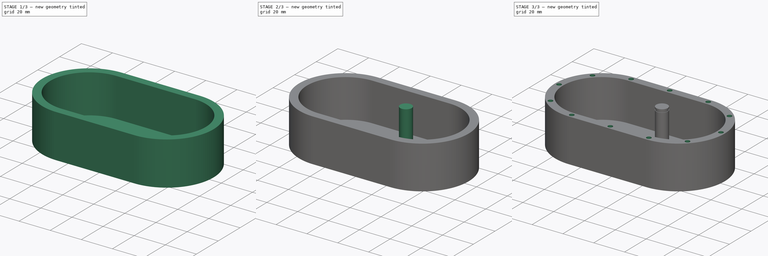
[diagram: build sequence overview — one tinted view per stage of 3, left to right]
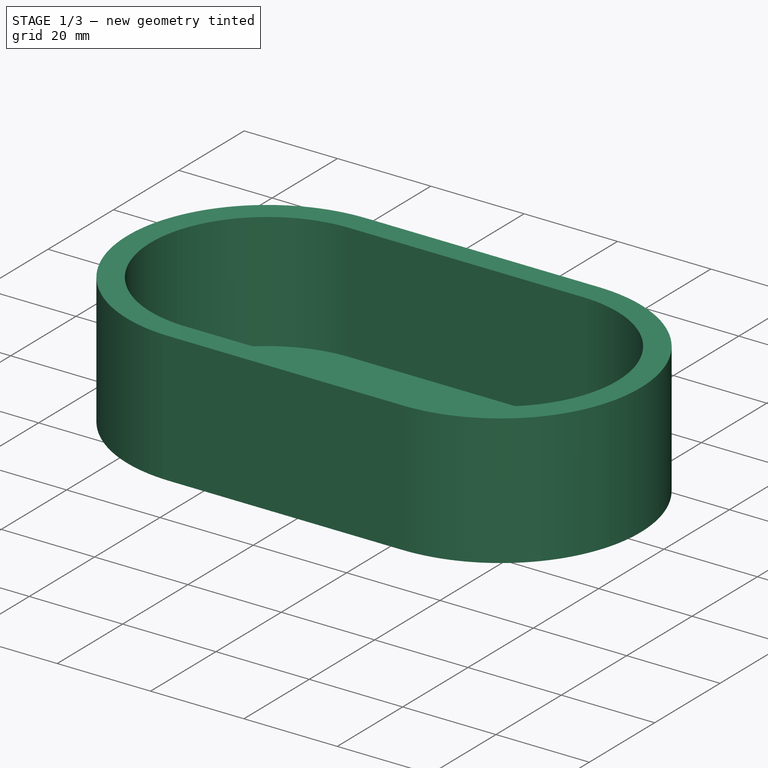
[diagram: stage 1 of 3 — iso view after this stage's code; geometry added in this stage tinted green]
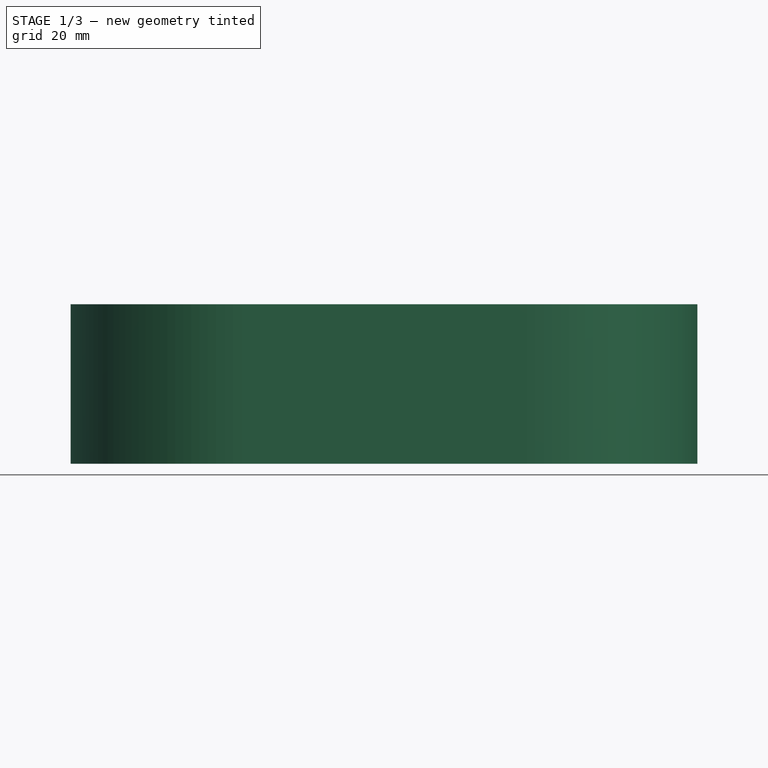
[diagram: stage 1 of 3 — front view after this stage's code; geometry added in this stage tinted green]
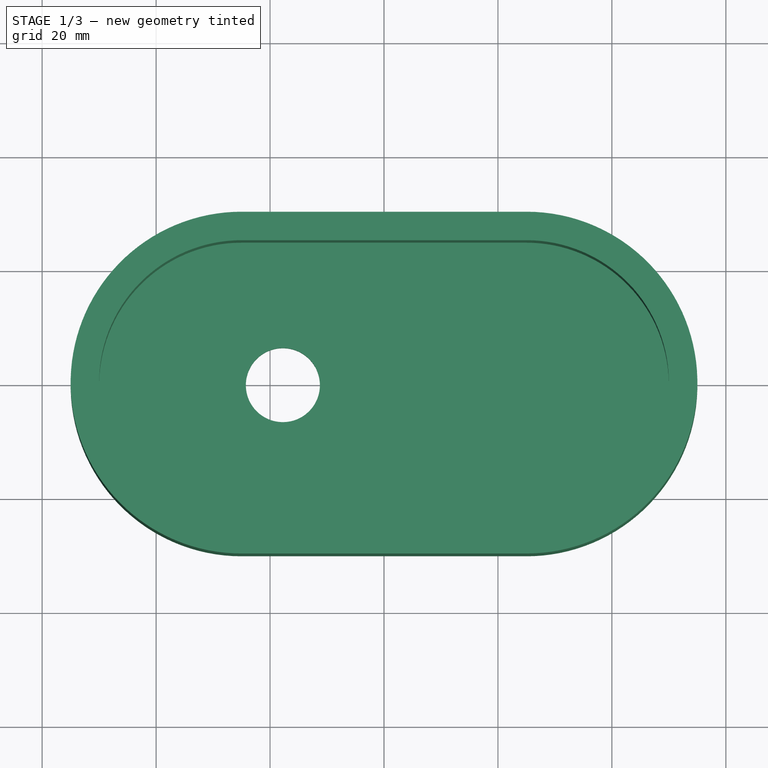
[diagram: stage 1 of 3 — top view after this stage's code; geometry added in this stage tinted green]
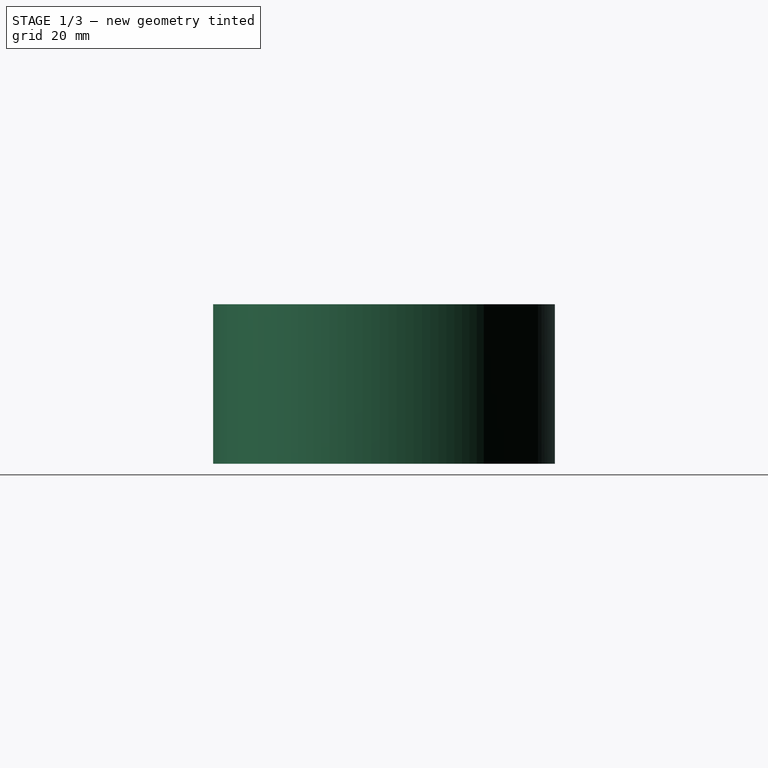
[diagram: stage 1 of 3 — right view after this stage's code; geometry added in this stage tinted green]
FCSTD DOCUMENT  (FreeCAD 0.17R13522 (Git))
Label: Gearbox
License: All rights reserved
LicenseURL: http://en.wikipedia.org/wiki/All_rights_reserved
objects: Sketcher::SketchObject×7, PartDesign::Pad×5, PartDesign::Plane×1, PartDesign::Groove×1, PartDesign::Pocket×1, PartDesign::Body×1, App::Part×1
note: 23 computed .brp shape members not serialized (recipe doc carries the construction recipe); baked Part::Feature solids carry a one-line shape summary decoded from their .brp

FEATURE [Sketcher::SketchObject] Sketch
  MapMode = 5
  Support = -> [XY_Plane001]
  sketch-geometry (7):
    g0: ArcOfCircle CenterX=-25 CenterY=0 CenterZ=0 NormalX=0 NormalY=0 NormalZ=1 AngleXU=0 Radius=30 StartAngle=1.5708 EndAngle=4.71239
    g1: ArcOfCircle CenterX=25 CenterY=0 CenterZ=0 NormalX=0 NormalY=0 NormalZ=1 AngleXU=0 Radius=30 StartAngle=4.71239 EndAngle=7.85398
    g2: LineSegment StartX=-25 StartY=-30 StartZ=0 EndX=25 EndY=-30 EndZ=0
    g3: LineSegment StartX=-25 StartY=30 StartZ=0 EndX=25 EndY=30 EndZ=0
    g4: Circle CenterX=-17.75 CenterY=0 CenterZ=0 NormalX=0 NormalY=0 NormalZ=1 AngleXU=0 Radius=6.5
    g5: Circle [constr] CenterX=-17.75 CenterY=0 CenterZ=0 NormalX=0 NormalY=0 NormalZ=1 AngleXU=0 Radius=15.5
    g6: Circle [constr] CenterX=17.75 CenterY=0 CenterZ=0 NormalX=0 NormalY=0 NormalZ=1 AngleXU=0 Radius=20
  constraints (18):
    c: Tangent(g0,g3) = 1.5708
    c: Tangent(g0,g2) = -1.5708
    c: Tangent(g2,g1) = -1.5708
    c: Tangent(g3,g1) = 1.5708
    c: Horizontal(g2)
    c: Equal(g0,g1)
    c: PointOnObject(g0,g-1)
    c: DistanceX(g0,g1) = 50
    c: DistanceY(g1,g1) = 60
    c: Symmetric(g0,g1,g-1)
    c: PointOnObject(g4,g-1)
    c: Radius(g4) = 6.5
    c: Coincident(g5,g4)
    c: PointOnObject(g6,g-1)
    c: Tangent(g6,g5)
    c: Radius(g6) = 20
    c: Radius(g5) = 15.5
    c: Symmetric(g4,g6,g-1)
FEATURE [PartDesign::Pad] Pad
  Length = 3
  Length2 = 100
  Profile = -> Sketch
  Type = 0
FEATURE [Sketcher::SketchObject] Sketch001  label="_gbwall"
  ExternalGeometry = -> [Pad]
  MapMode = 5
  Placement = pos=(0,0,3) rot=(0,0,1;0rad)
  Support = -> [Pad]
  sketch-geometry (12):
    g0: ArcOfCircle CenterX=-25 CenterY=0 CenterZ=0 NormalX=0 NormalY=0 NormalZ=1 AngleXU=0 Radius=25 StartAngle=1.5708 EndAngle=4.71239
    g1: ArcOfCircle CenterX=25 CenterY=0 CenterZ=0 NormalX=0 NormalY=0 NormalZ=1 AngleXU=0 Radius=25 StartAngle=4.71239 EndAngle=7.85398
    g2: LineSegment StartX=-25 StartY=-25 StartZ=0 EndX=25 EndY=-25 EndZ=0
    g3: LineSegment StartX=-25 StartY=25 StartZ=0 EndX=25 EndY=25 EndZ=0
    g4: LineSegment [constr] StartX=-25 StartY=25 StartZ=0 EndX=-25 EndY=30 EndZ=0
    g5: LineSegment [constr] StartX=25 StartY=-25 StartZ=0 EndX=25 EndY=-30 EndZ=0
    g6: LineSegment [constr] StartX=50 StartY=0 StartZ=0 EndX=55 EndY=0 EndZ=0
    g7: LineSegment [constr] StartX=-50 StartY=0 StartZ=0 EndX=-55 EndY=0 EndZ=0
    g8: ArcOfCircle CenterX=-25 CenterY=0 CenterZ=0 NormalX=0 NormalY=0 NormalZ=1 AngleXU=0 Radius=30 StartAngle=1.5708 EndAngle=4.71239
    g9: ArcOfCircle CenterX=25 CenterY=0 CenterZ=0 NormalX=0 NormalY=0 NormalZ=1 AngleXU=0 Radius=30 StartAngle=4.71239 EndAngle=7.85398
    g10: LineSegment StartX=-25 StartY=-30 StartZ=0 EndX=25 EndY=-30 EndZ=0
    g11: LineSegment StartX=-25 StartY=30 StartZ=0 EndX=25 EndY=30 EndZ=0
  constraints (34):
    c: Tangent(g0,g3) = 1.5708
    c: Tangent(g0,g2) = -1.5708
    c: Tangent(g2,g1) = -1.5708
    c: Tangent(g3,g1) = 1.5708
    c: Horizontal(g2)
    c: Equal(g0,g1)
    c: PointOnObject(g0,g-1)
    c: Coincident(g4,g0)
    c: PointOnObject(g4,g-3)
    c: Vertical(g4)
    c: Coincident(g5,g1)
    c: PointOnObject(g5,g-5)
    c: Vertical(g5)
    c: PointOnObject(g6,g1)
    c: PointOnObject(g6,g-6)
    c: Horizontal(g6)
    c: PointOnObject(g7,g0)
    c: PointOnObject(g7,g-4)
    c: Horizontal(g7)
    c: Equal(g7,g6)
    c: Equal(g5,g4)
    c: PointOnObject(g7,g-1)
    c: PointOnObject(g6,g-1)
    c: DistanceX(g7,g7) = 5
    c: DistanceY(g4,g4) = 5
    c: Tangent(g8,g11) = 1.5708
    c: Tangent(g8,g10) = -1.5708
    c: Tangent(g10,g9) = -1.5708
    c: Tangent(g11,g9) = 1.5708
    c: Horizontal(g10)
    c: Equal(g8,g9)
    c: Tangent(g9,g-6)
    c: Coincident(g9,g1)
    c: Coincident(g8,g0)
FEATURE [PartDesign::Pad] Pad001
  BaseFeature = -> Pad
  Length = 25
  Length2 = 100
  Profile = -> Sketch001
  Type = 0
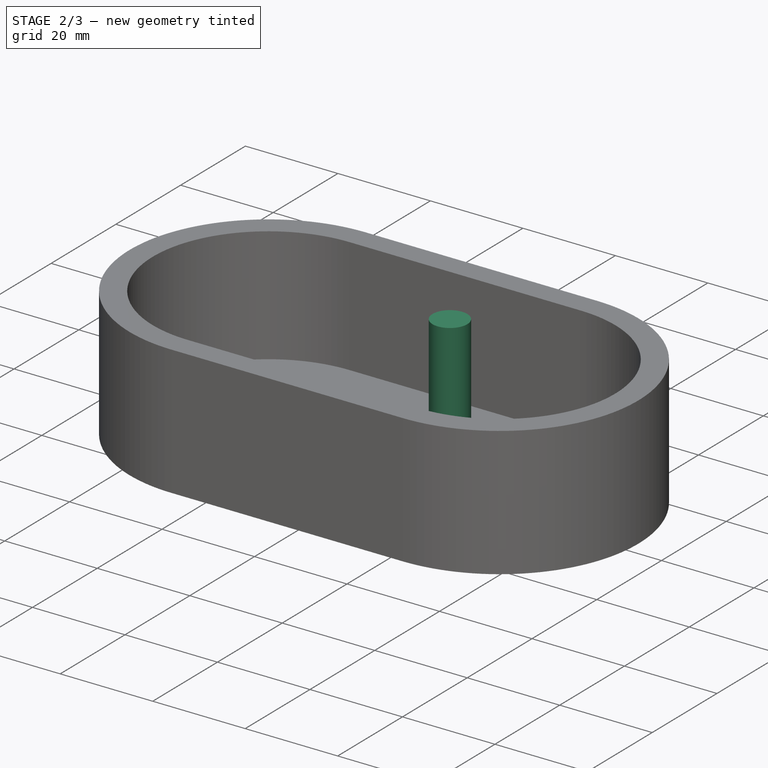
[diagram: stage 2 of 3 — iso view after this stage's code; geometry added in this stage tinted green]
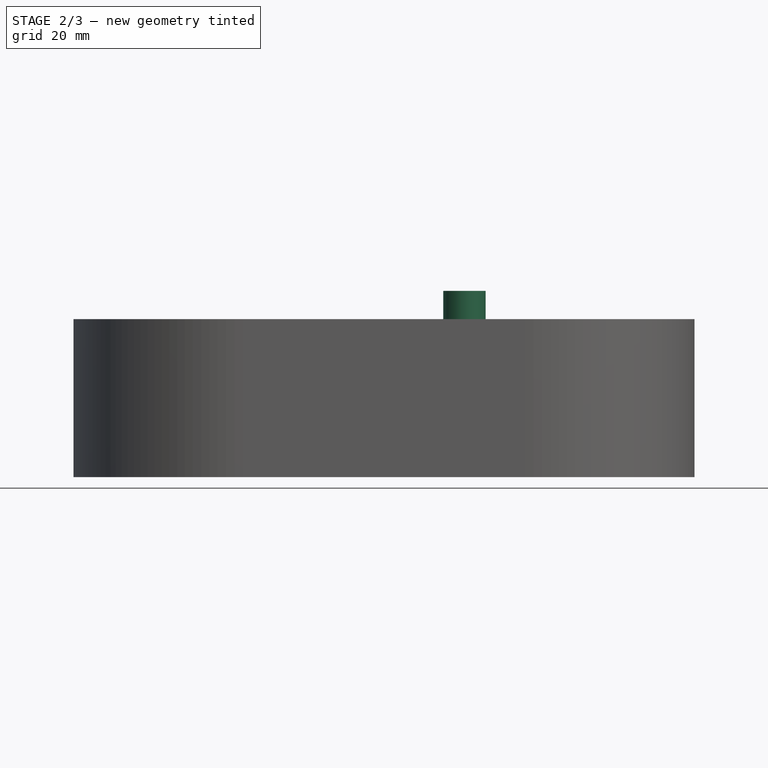
[diagram: stage 2 of 3 — front view after this stage's code; geometry added in this stage tinted green]
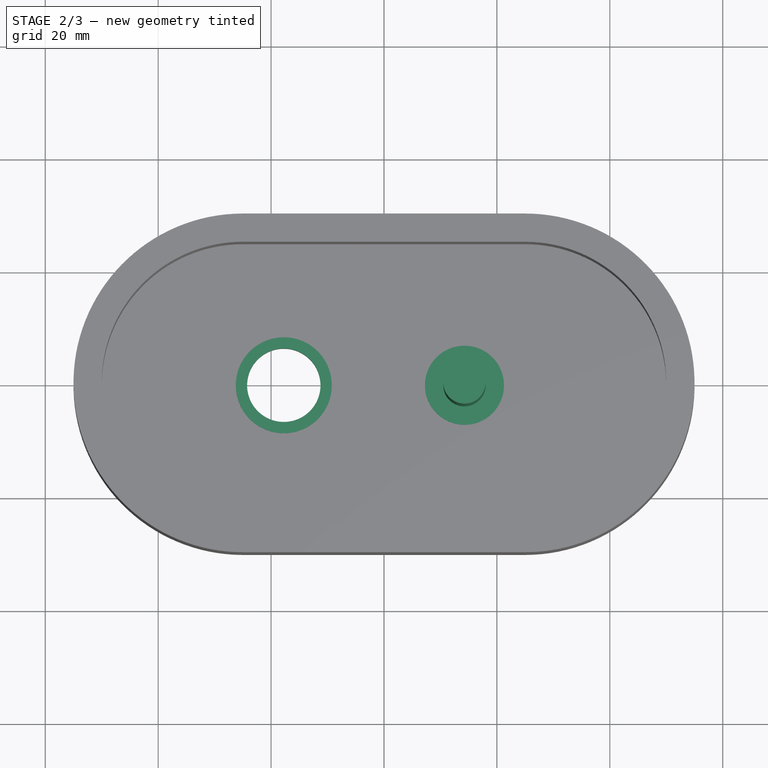
[diagram: stage 2 of 3 — top view after this stage's code; geometry added in this stage tinted green]
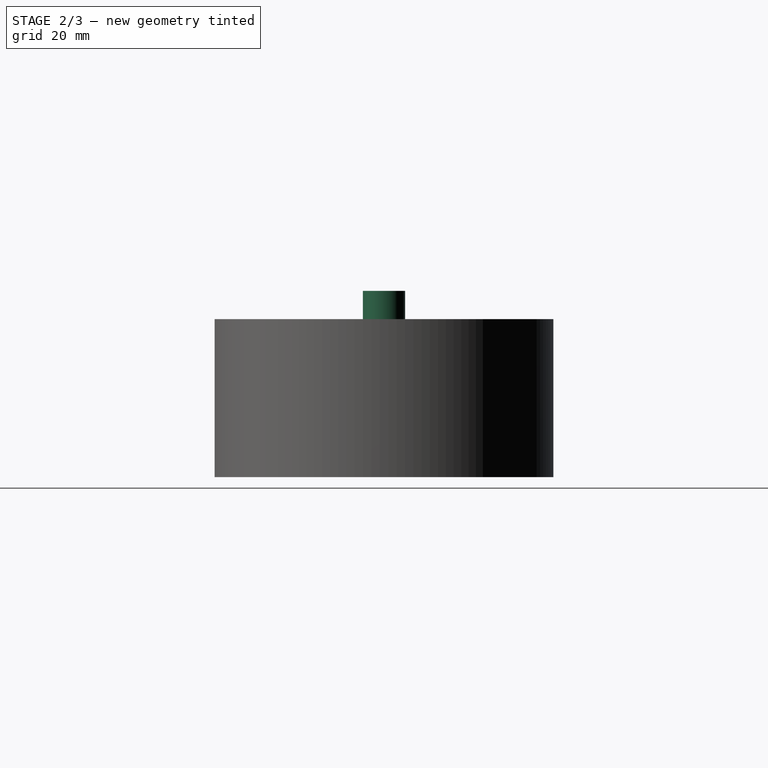
[diagram: stage 2 of 3 — right view after this stage's code; geometry added in this stage tinted green]
FEATURE [Sketcher::SketchObject] Sketch002
  ExternalGeometry = -> [Pad001]
  MapMode = 5
  Placement = pos=(0,0,3) rot=(0,0,1;0rad)
  Support = -> [Pad001]
  sketch-geometry (3):
    g0: Circle CenterX=-17.75 CenterY=0 CenterZ=0 NormalX=0 NormalY=0 NormalZ=1 AngleXU=0 Radius=8.5
    g1: Circle CenterX=-17.75 CenterY=0 CenterZ=0 NormalX=0 NormalY=0 NormalZ=1 AngleXU=0 Radius=6.5
    g2: LineSegment [constr] StartX=-11.25 StartY=0 StartZ=0 EndX=-9.25 EndY=0 EndZ=0
  constraints (8):
    c: Coincident(g0,g-3)
    c: Coincident(g1,g0)
    c: Equal(g1,g-3)
    c: PointOnObject(g2,g1)
    c: PointOnObject(g2,g0)
    c: Horizontal(g2)
    c: PointOnObject(g2,g-1)
    c: DistanceX(g2,g2) = 2
FEATURE [PartDesign::Pad] Pad002
  BaseFeature = -> Pad001
  Length = 1
  Length2 = 100
  Profile = -> Sketch002
  Type = 0
FEATURE [Sketcher::SketchObject] Sketch003
  ExternalGeometry = -> [Pad002]
  MapMode = 5
  Placement = pos=(0,0,3) rot=(0,0,1;0rad)
  Support = -> [Pad002]
  sketch-geometry (6):
    g0: Circle [constr] CenterX=-17.75 CenterY=0 CenterZ=0 NormalX=0 NormalY=0 NormalZ=1 AngleXU=0 Radius=24
    g1: Circle [constr] CenterX=-17.75 CenterY=0 CenterZ=0 NormalX=0 NormalY=0 NormalZ=1 AngleXU=0 Radius=20
    g2: LineSegment [constr] StartX=1.94616 StartY=3.47296 StartZ=0 EndX=5.88539 EndY=4.16756 EndZ=0
    g3: Circle [constr] CenterX=14.25 CenterY=0 CenterZ=0 NormalX=0 NormalY=0 NormalZ=1 AngleXU=0 Radius=12
    g4: Circle CenterX=14.25 CenterY=0 CenterZ=0 NormalX=0 NormalY=0 NormalZ=1 AngleXU=0 Radius=7
    g5: GeomPoint X=55 Y=0 Z=0
  constraints (15):
    c: Coincident(g0,g-3)
    c: Radius(g0) = 24
    c: Coincident(g1,g0)
    c: PointOnObject(g2,g1)
    c: PointOnObject(g2,g0)
    c: Perpendicular(g1,g2)
    c: Distance(g2) = 4
    c: Angle(g-1,g2) = 0.174533
    c: Tangent(g3,g1)
    c: Radius(g3) = 12
    c: PointOnObject(g3,g-1)
    c: Coincident(g4,g3)
    c: Radius(g4) = 7
    c: PointOnObject(g5,g-4)
    c: PointOnObject(g5,g-1)
FEATURE [PartDesign::Pad] Pad003
  BaseFeature = -> Pad002
  Length = 1
  Length2 = 100
  Profile = -> Sketch003
  Type = 0
FEATURE [Sketcher::SketchObject] Sketch004
  ExternalGeometry = -> [Pad003]
  MapMode = 5
  Placement = pos=(0,0,4) rot=(0,0,1;0rad)
  Support = -> [Pad003]
  sketch-geometry (1):
    g0: Circle CenterX=14.25 CenterY=0 CenterZ=0 NormalX=0 NormalY=0 NormalZ=1 AngleXU=0 Radius=3.75
  constraints (2):
    c: Coincident(g0,g-3)
    c: Radius(g0) = 3.75
FEATURE [PartDesign::Pad] Pad004
  BaseFeature = -> Pad003
  Length = 29
  Length2 = 100
  Profile = -> Sketch004
  Type = 0
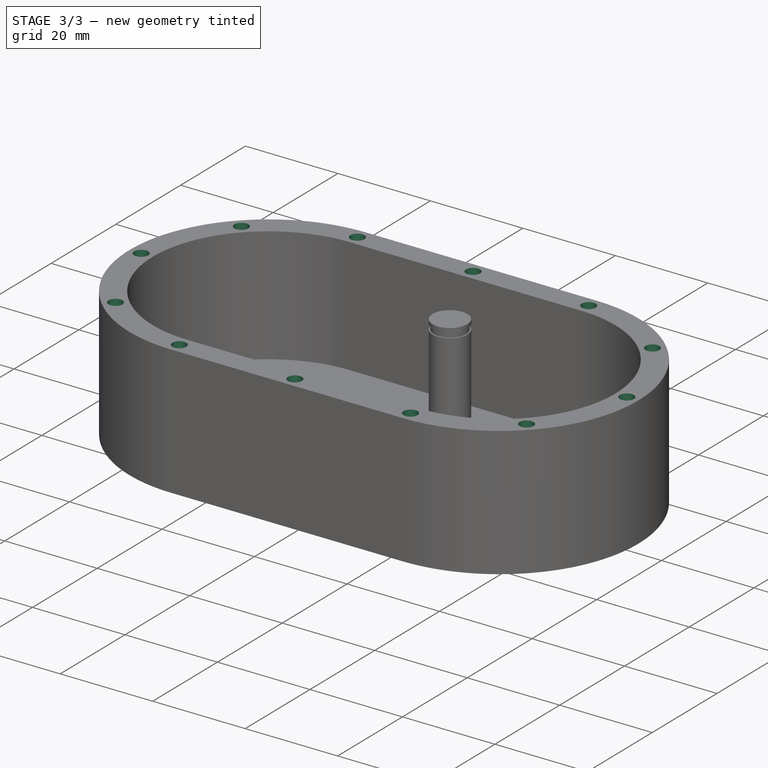
[diagram: stage 3 of 3 — iso view after this stage's code; geometry added in this stage tinted green]
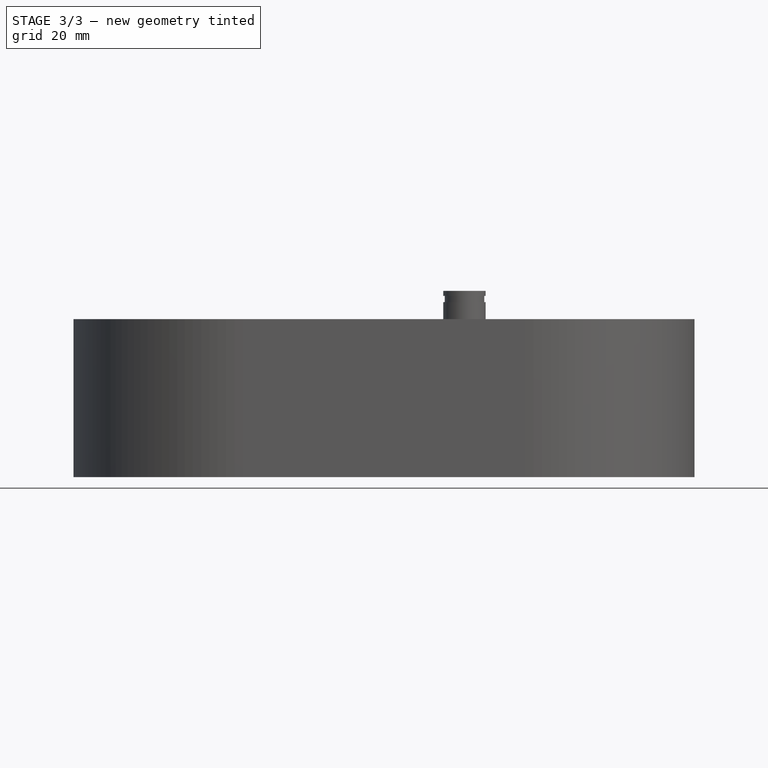
[diagram: stage 3 of 3 — front view after this stage's code; geometry added in this stage tinted green]
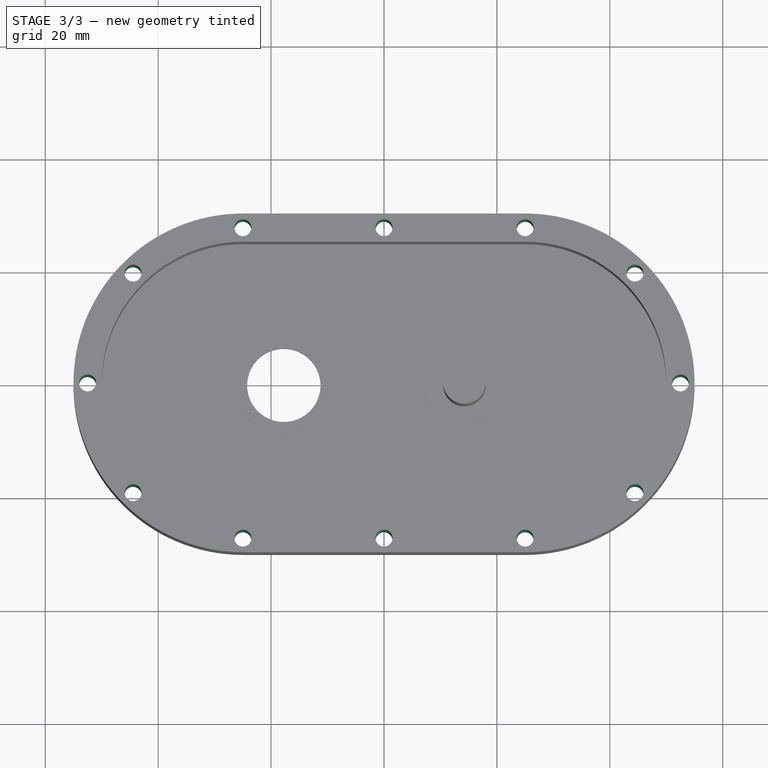
[diagram: stage 3 of 3 — top view after this stage's code; geometry added in this stage tinted green]
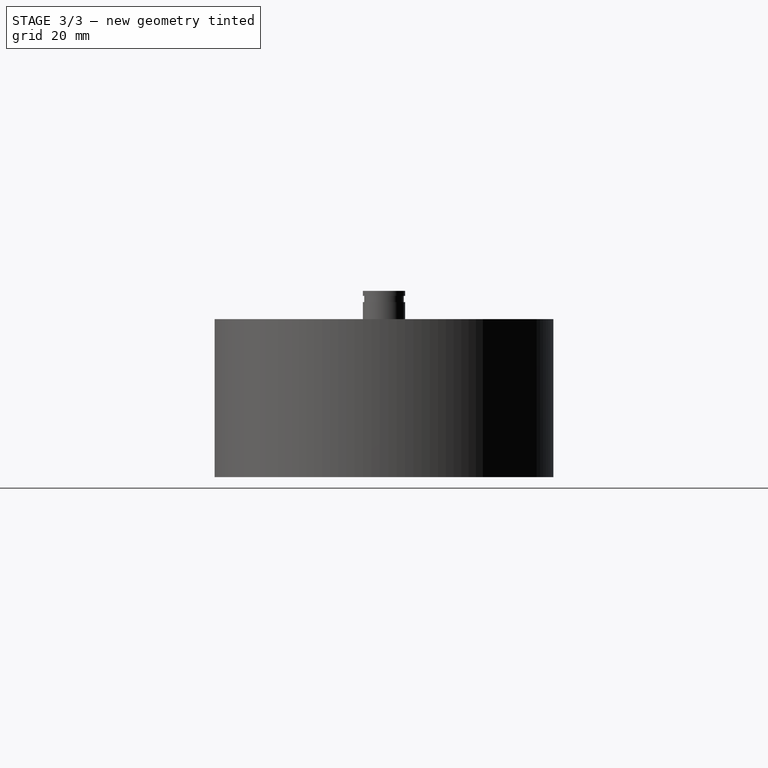
[diagram: stage 3 of 3 — right view after this stage's code; geometry added in this stage tinted green]
FEATURE [PartDesign::Plane] DatumPlane
  AttachmentOffset = pos=(0,0,0) rot=(1,0,0;1.5708rad)
  MapMode = 45
  Placement = pos=(14.25,0,18.5) rot=(1,0,0;1.5708rad)
  Support = -> [Pad004]
FEATURE [Sketcher::SketchObject] Sketch005
  ExternalGeometry = -> [Pad004]
  MapMode = 5
  Placement = pos=(14.25,0,18.5) rot=(1,0,0;1.5708rad)
  Support = -> [DatumPlane]
  sketch-geometry (4):
    g0: LineSegment StartX=3.75 StartY=13.6 StartZ=0 EndX=3.5 EndY=13.6 EndZ=0
    g1: LineSegment StartX=3.5 StartY=13.6 StartZ=0 EndX=3.5 EndY=12.5 EndZ=0
    g2: LineSegment StartX=3.5 StartY=12.5 StartZ=0 EndX=3.75 EndY=12.5 EndZ=0
    g3: LineSegment StartX=3.75 StartY=12.5 StartZ=0 EndX=3.75 EndY=13.6 EndZ=0
  constraints (12):
    c: Coincident(g0,g1)
    c: Coincident(g1,g2)
    c: Coincident(g2,g3)
    c: Coincident(g3,g0)
    c: Horizontal(g0)
    c: Horizontal(g2)
    c: Vertical(g1)
    c: Vertical(g3)
    c: PointOnObject(g0,g-3)
    c: DistanceY(g-3,g2) = 27
    c: DistanceY(g3,g3) = 1.1
    c: DistanceX(g0,g0) = 0.25
FEATURE [PartDesign::Groove] Groove
  Angle = 360
  Axis = (0,0,1)
  Base = (14.25,0,18.5)
  BaseFeature = -> Pad004
  Profile = -> Sketch005
  ReferenceAxis = -> Sketch005 [V_Axis]
FEATURE [Sketcher::SketchObject] Sketch006
  ExternalGeometry = -> [Groove]
  MapMode = 5
  Placement = pos=(0,0,0) rot=(1,0,0;3.14159rad)
  Support = -> [Groove]
  sketch-geometry (20):
    g0: ArcOfCircle [constr] CenterX=-25 CenterY=0 CenterZ=0 NormalX=0 NormalY=0 NormalZ=1 AngleXU=0 Radius=27.5 StartAngle=1.5708 EndAngle=4.71239
    g1: ArcOfCircle [constr] CenterX=25 CenterY=0 CenterZ=0 NormalX=0 NormalY=0 NormalZ=1 AngleXU=0 Radius=27.5 StartAngle=4.71239 EndAngle=7.85398
    g2: LineSegment [constr] StartX=-25 StartY=-27.5 StartZ=0 EndX=25 EndY=-27.5 EndZ=0
    g3: LineSegment [constr] StartX=-25 StartY=27.5 StartZ=0 EndX=25 EndY=27.5 EndZ=0
    g4: Circle CenterX=-44.4454 CenterY=19.4454 CenterZ=0 NormalX=0 NormalY=0 NormalZ=1 AngleXU=0 Radius=1.5
    g5: Circle CenterX=44.4454 CenterY=19.4454 CenterZ=0 NormalX=0 NormalY=0 NormalZ=1 AngleXU=0 Radius=1.5
    g6: Circle CenterX=-44.4454 CenterY=-19.4454 CenterZ=0 NormalX=0 NormalY=0 NormalZ=1 AngleXU=0 Radius=1.5
    g7: Circle CenterX=44.4454 CenterY=-19.4454 CenterZ=0 NormalX=0 NormalY=0 NormalZ=1 AngleXU=0 Radius=1.5
    g8: LineSegment [constr] StartX=-25 StartY=0 StartZ=0 EndX=-44.4454 EndY=19.4454 EndZ=0
    g9: LineSegment [constr] StartX=-25 StartY=0 StartZ=0 EndX=-44.4454 EndY=-19.4454 EndZ=0
    g10: LineSegment [constr] StartX=25 StartY=0 StartZ=0 EndX=44.4454 EndY=19.4454 EndZ=0
    g11: LineSegment [constr] StartX=25 StartY=0 StartZ=0 EndX=44.4454 EndY=-19.4454 EndZ=0
    g12: Circle CenterX=-25 CenterY=27.5 CenterZ=0 NormalX=0 NormalY=0 NormalZ=1 AngleXU=0 Radius=1.5
    g13: Circle CenterX=0 CenterY=27.5 CenterZ=0 NormalX=0 NormalY=0 NormalZ=1 AngleXU=0 Radius=1.5
    g14: Circle CenterX=25 CenterY=27.5 CenterZ=0 NormalX=0 NormalY=0 NormalZ=1 AngleXU=0 Radius=1.5
    g15: Circle CenterX=52.5 CenterY=0 CenterZ=0 NormalX=0 NormalY=0 NormalZ=1 AngleXU=0 Radius=1.5
    g16: Circle CenterX=25 CenterY=-27.5 CenterZ=0 NormalX=0 NormalY=0 NormalZ=1 AngleXU=0 Radius=1.5
    g17: Circle CenterX=0 CenterY=-27.5 CenterZ=0 NormalX=0 NormalY=0 NormalZ=1 AngleXU=0 Radius=1.5
    g18: Circle CenterX=-25 CenterY=-27.5 CenterZ=0 NormalX=0 NormalY=0 NormalZ=1 AngleXU=0 Radius=1.5
    g19: Circle CenterX=-52.5 CenterY=0 CenterZ=0 NormalX=0 NormalY=0 NormalZ=1 AngleXU=0 Radius=1.5
  constraints (43):
    c: Tangent(g0,g3) = 1.5708
    c: Tangent(g0,g2) = -1.5708
    c: Tangent(g2,g1) = -1.5708
    c: Tangent(g3,g1) = 1.5708
    c: Horizontal(g2)
    c: Equal(g0,g1)
    c: Coincident(g0,g-3)
    c: Coincident(g1,g-4)
    c: DistanceY(g0,g-3) = 2.5
    c: Coincident(g8,g0)
    c: Coincident(g8,g4)
    c: Coincident(g9,g0)
    c: Coincident(g9,g6)
    c: PointOnObject(g4,g0)
    c: PointOnObject(g6,g0)
    c: PointOnObject(g5,g1)
    c: PointOnObject(g7,g1)
    c: Coincident(g10,g1)
    c: Coincident(g10,g5)
    c: Coincident(g11,g1)
    c: Coincident(g11,g7)
    c: Angle(g11,g10) = 1.5708
    c: Angle(g8,g9) = 1.5708
    c: Angle(g-1,g8) = 2.35619
    c: Angle(g-1,g11) = 2.35619
    c: Radius(g7) = 1.5
    c: Equal(g7,g5)
    c: Equal(g7,g4)
    c: Equal(g7,g6)
    c: Coincident(g12,g0)
    c: Coincident(g14,g1)
    c: PointOnObject(g15,g1)
    c: Coincident(g16,g1)
    c: PointOnObject(g17,g2)
    c: Coincident(g18,g0)
    c: PointOnObject(g19,g0)
    c: PointOnObject(g19,g-1)
    c: PointOnObject(g13,g3)
    c: PointOnObject(g13,g-2)
    c: PointOnObject(g15,g-1)
    c: PointOnObject(g17,g-2)
    c: Radius(g19) = 1.5
    c: Equal(g19, g12-g18) x7
FEATURE [PartDesign::Pocket] Pocket
  BaseFeature = -> Groove
  Length = 50
  Length2 = 100
  Profile = -> Sketch006
  Type = 0
FEATURE [PartDesign::Body] Body
  Group = -> [Sketch,Pad,Sketch001,Pad001,Sketch002,Pad002,Sketch003,Pad003,Sketch004,Pad004,DatumPlane,Sketch005,Groove,Sketch006,Pocket]
  Origin = -> Origin001
  Tip = -> Pocket
FEATURE [App::Part] Part
  Group = -> [Body]
  License = CC BY 3.0
  LicenseURL = http://creativecommons.org/licenses/by/3.0/
  Origin = -> Origin
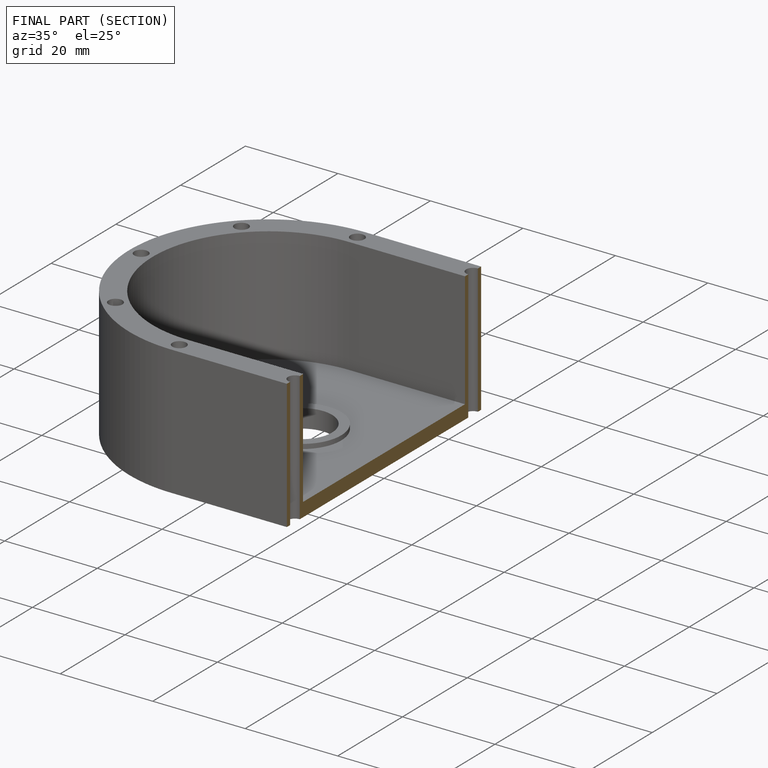
[diagram: finished part — half-section view (interior)]
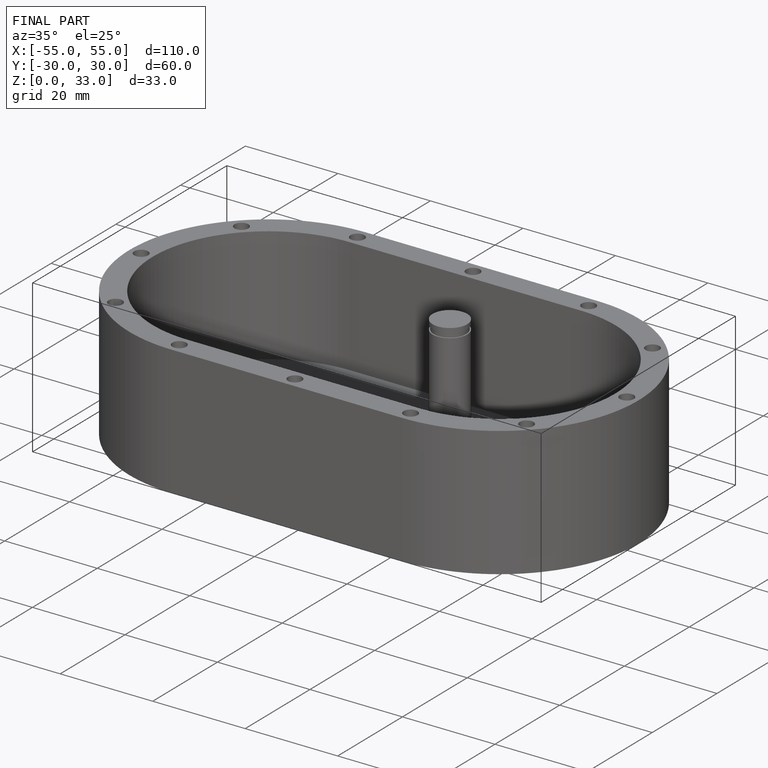
[diagram: finished part — iso view with bounding-box wireframe]
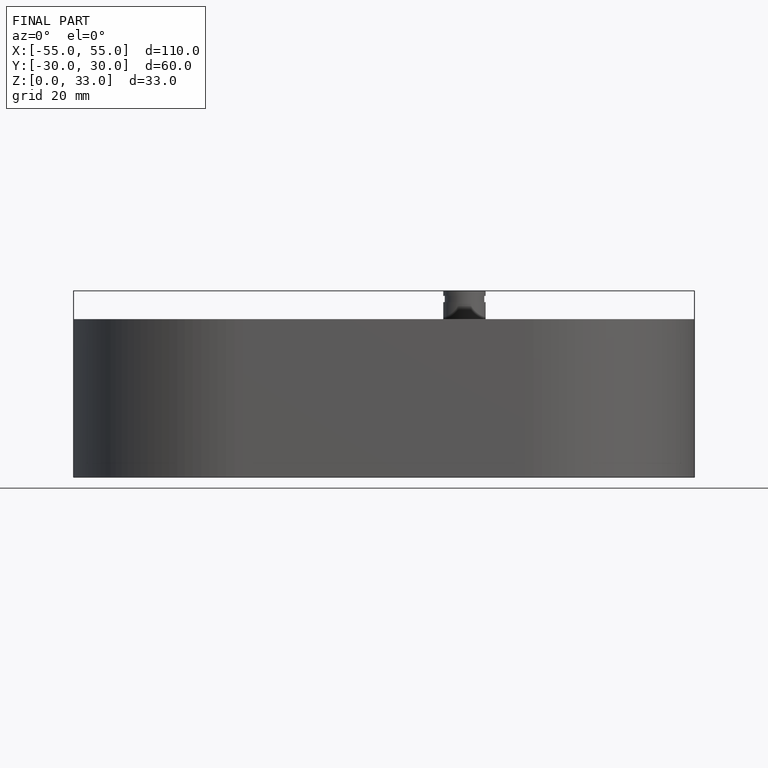
[diagram: finished part — front view with bounding-box wireframe]
